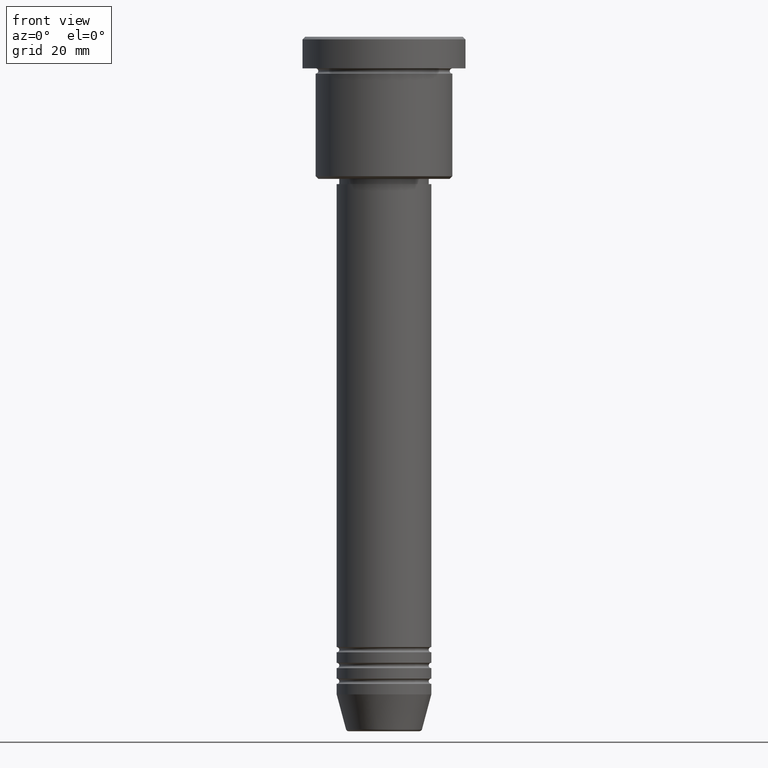
[diagram: clean part render]
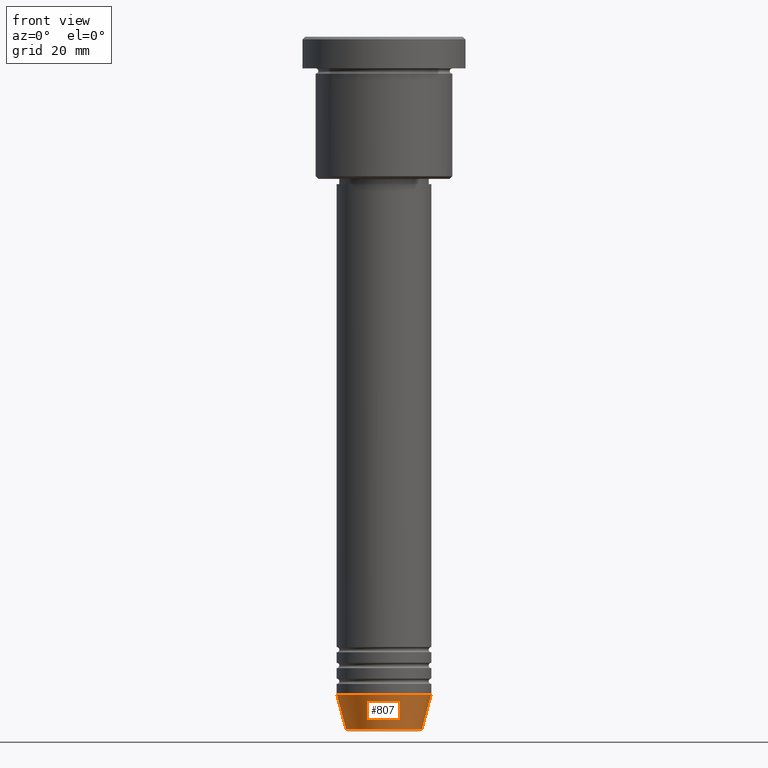
[diagram: same view with one face highlighted and labeled with its STEP entity id]
A machine part, front view. The second image highlights one B-rep face of the part: STEP entity #807.
In plain terms, the highlighted conical surface has half-angle 15 deg.
Its self-contained STEP definition (entity closure, byte-faithful):
#3 = AXIS2_PLACEMENT_3D ( 'NONE', #833, #645, #1084 ) ;
#18 = VERTEX_POINT ( 'NONE', #224 ) ;
#124 = CARTESIAN_POINT ( 'NONE',  ( 0.000000000000000000, 0.000000000000000000, -125.0000000000000000 ) ) ;
#131 = VECTOR ( 'NONE', #860, 1000.000000000000000 ) ;
#186 = EDGE_CURVE ( 'NONE', #214, #712, #542, .T. ) ;
#214 = VERTEX_POINT ( 'NONE', #560 ) ;
#224 = CARTESIAN_POINT ( 'NONE',  ( -7.223655072137189492, 9.934123627281765110E-16, -131.6294095225512706 ) ) ;
#229 = VECTOR ( 'NONE', #829, 1000.000000000000000 ) ;
#255 = CARTESIAN_POINT ( 'NONE',  ( 0.000000000000000000, 0.000000000000000000, -125.0000000000000000 ) ) ;
#354 = DIRECTION ( 'NONE',  ( -0.000000000000000000, -0.000000000000000000, 1.000000000000000000 ) ) ;
#363 = CARTESIAN_POINT ( 'NONE',  ( -9.000000000000000000, 1.102182119232617714E-15, -125.0000000000000000 ) ) ;
#542 = LINE ( 'NONE', #641, #229 ) ;
#549 = ORIENTED_EDGE ( 'NONE', *, *, #1102, .T. ) ;
#552 = ORIENTED_EDGE ( 'NONE', *, *, #186, .T. ) ;
#555 = EDGE_CURVE ( 'NONE', #661, #712, #1166, .T. ) ;
#560 = CARTESIAN_POINT ( 'NONE',  ( 7.223655072137188604, 0.000000000000000000, -131.6294095225512706 ) ) ;
#566 = CARTESIAN_POINT ( 'NONE',  ( 9.000000000000000000, 0.000000000000000000, -125.0000000000000000 ) ) ;
#641 = CARTESIAN_POINT ( 'NONE',  ( 9.000000000000000000, 0.000000000000000000, -125.0000000000000000 ) ) ;
#645 = DIRECTION ( 'NONE',  ( -0.000000000000000000, -0.000000000000000000, 1.000000000000000000 ) ) ;
#661 = VERTEX_POINT ( 'NONE', #363 ) ;
#677 = EDGE_LOOP ( 'NONE', ( #1144, #549, #552, #832 ) ) ;
#682 = DIRECTION ( 'NONE',  ( 1.000000000000000000, 0.000000000000000000, 0.000000000000000000 ) ) ;
#712 = VERTEX_POINT ( 'NONE', #566 ) ;
#737 = AXIS2_PLACEMENT_3D ( 'NONE', #124, #950, #682 ) ;
#754 = AXIS2_PLACEMENT_3D ( 'NONE', #255, #354, #1076 ) ;
#775 = CONICAL_SURFACE ( 'NONE', #737, 9.000000000000000000, 0.2617993877991500740 ) ;
#799 = EDGE_CURVE ( 'NONE', #18, #661, #935, .T. ) ;
#807 = ADVANCED_FACE ( 'NONE', ( #1129 ), #775, .T. ) ;
#829 = DIRECTION ( 'NONE',  ( 0.2588190451025213501, 0.000000000000000000, 0.9659258262890680902 ) ) ;
#832 = ORIENTED_EDGE ( 'NONE', *, *, #555, .F. ) ;
#833 = CARTESIAN_POINT ( 'NONE',  ( 0.000000000000000000, 0.000000000000000000, -131.6294095225512706 ) ) ;
#854 = CIRCLE ( 'NONE', #3, 7.223655072137188604 ) ;
#860 = DIRECTION ( 'NONE',  ( -0.2588190451025213501, 3.169619151431772337E-17, 0.9659258262890680902 ) ) ;
#935 = LINE ( 'NONE', #1036, #131 ) ;
#950 = DIRECTION ( 'NONE',  ( -0.000000000000000000, -0.000000000000000000, 1.000000000000000000 ) ) ;
#1036 = CARTESIAN_POINT ( 'NONE',  ( -9.000000000000000000, 1.102182119232617714E-15, -125.0000000000000000 ) ) ;
#1076 = DIRECTION ( 'NONE',  ( 1.000000000000000000, 0.000000000000000000, 0.000000000000000000 ) ) ;
#1084 = DIRECTION ( 'NONE',  ( 1.000000000000000000, 0.000000000000000000, 0.000000000000000000 ) ) ;
#1102 = EDGE_CURVE ( 'NONE', #18, #214, #854, .T. ) ;
#1129 = FACE_OUTER_BOUND ( 'NONE', #677, .T. ) ;
#1144 = ORIENTED_EDGE ( 'NONE', *, *, #799, .F. ) ;
#1166 = CIRCLE ( 'NONE', #754, 9.000000000000000000 ) ;